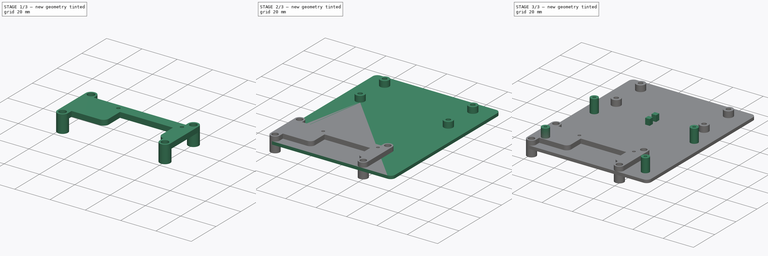
[diagram: build sequence overview — one tinted view per stage of 3, left to right]
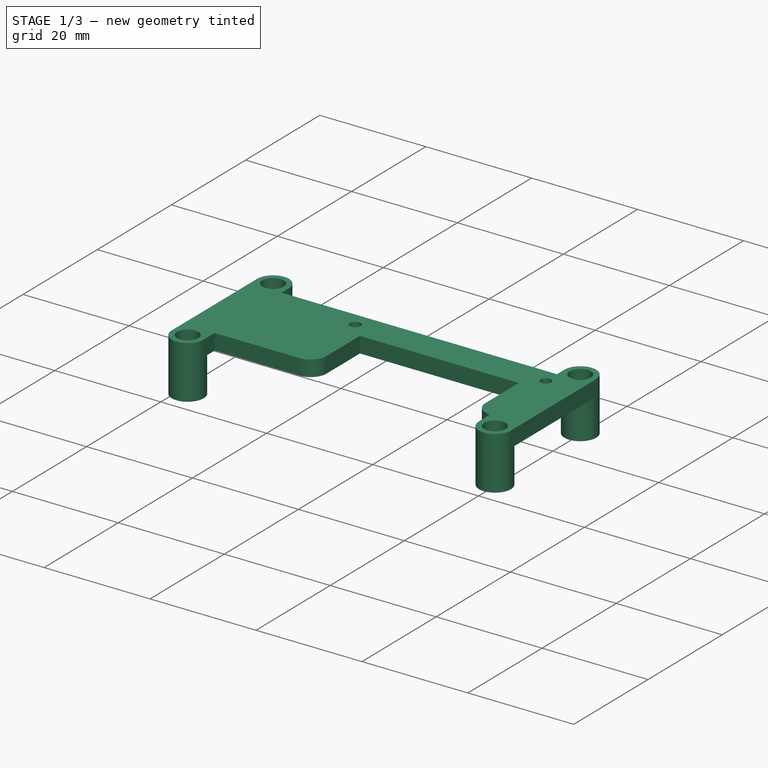
[diagram: stage 1 of 3 — iso view after this stage's code; geometry added in this stage tinted green]
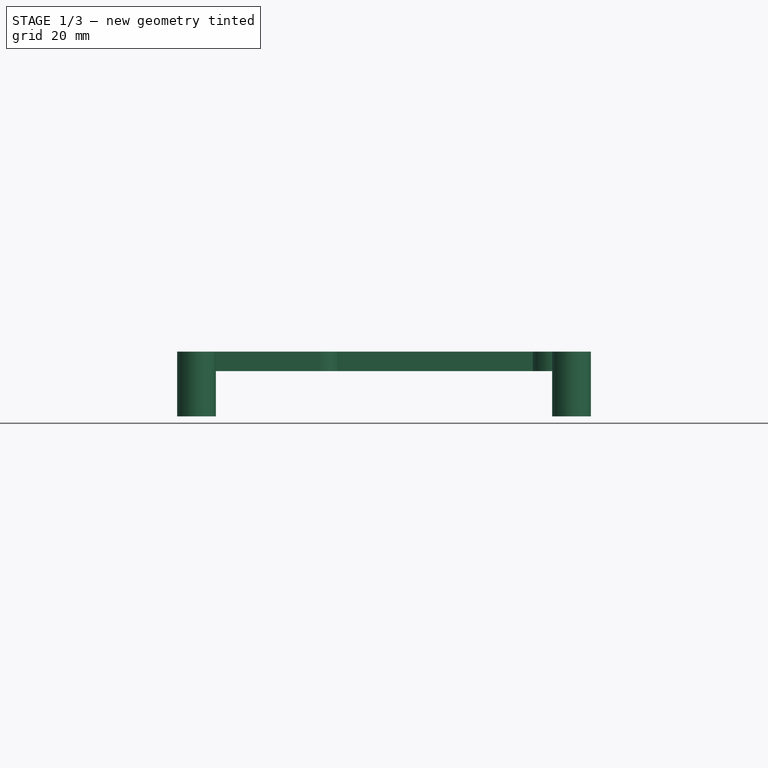
[diagram: stage 1 of 3 — front view after this stage's code; geometry added in this stage tinted green]
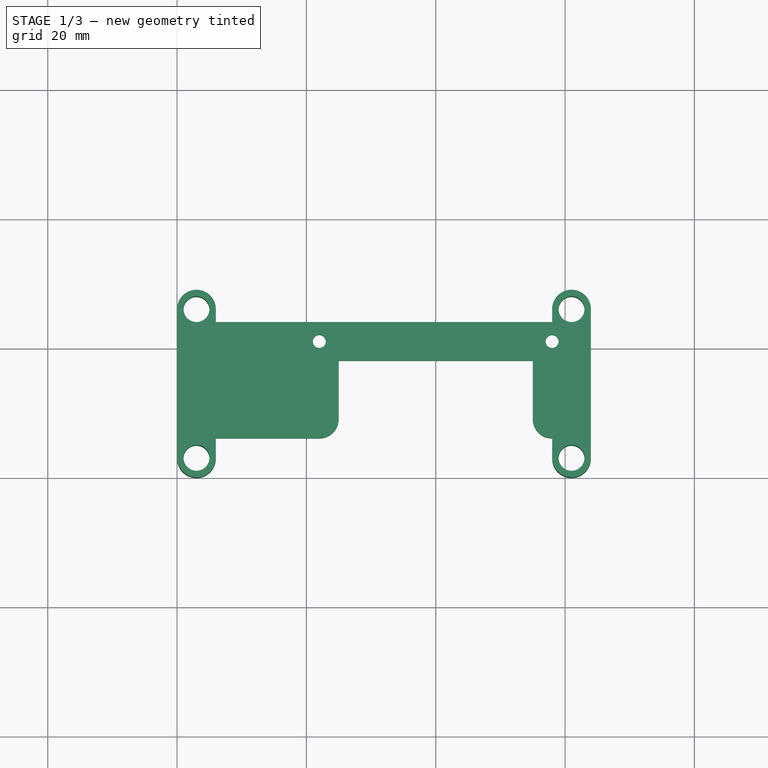
[diagram: stage 1 of 3 — top view after this stage's code; geometry added in this stage tinted green]
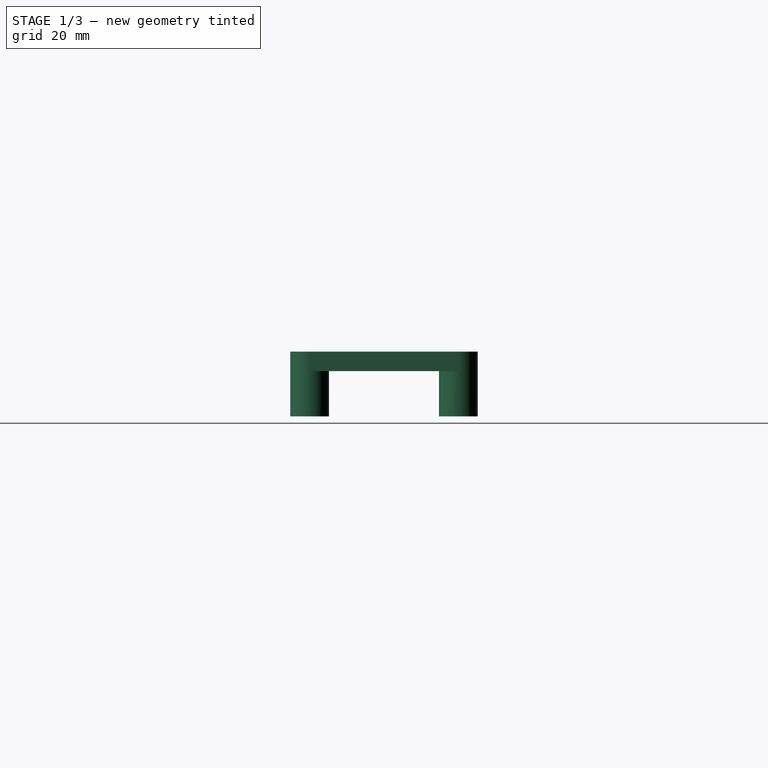
[diagram: stage 1 of 3 — right view after this stage's code; geometry added in this stage tinted green]
FCSTD DOCUMENT  (FreeCAD 1.0R39109 (Git))
Label: Octobox 2W double
License: All rights reserved
LicenseURL: http://en.wikipedia.org/wiki/All_rights_reserved
objects: Sketcher::SketchObject×6, PartDesign::Pad×6, PartDesign::Body×2
note: 32 computed .brp shape members not serialized (recipe doc carries the construction recipe); baked Part::Feature solids carry a one-line shape summary decoded from their .brp

FEATURE [PartDesign::Body] Body002  label="Base"
  AllowCompound = false
  Group = -> [Sketch002,Pad002,Sketch003,Pad003,Pad014,Sketch017,Sketch018,Pad015]
  Origin = -> Origin002
  Placement = pos=(0,0,-4) rot=(0,0,1;0rad)
  Tip = -> Pad015
FEATURE [Sketcher::SketchObject] Sketch
  ArcFitTolerance = 1e-06
  AttachmentSupport = -> [XY_Plane]
  FullyConstrained = true
  MakeInternals = false
  MapMode = 5
  sketch-geometry (27):
    g0: LineSegment StartX=0 StartY=26 StartZ=0 EndX=0 EndY=3 EndZ=0
    g1: LineSegment StartX=64 StartY=3 StartZ=0 EndX=64 EndY=26 EndZ=0
    g2: ArcOfCircle CenterX=3 CenterY=26 CenterZ=0 NormalX=0 NormalY=0 NormalZ=1 AngleXU=0 Radius=3 StartAngle=0 EndAngle=3.14159
    g3: ArcOfCircle CenterX=3 CenterY=3 CenterZ=0 NormalX=0 NormalY=0 NormalZ=1 AngleXU=0 Radius=3 StartAngle=3.14159 EndAngle=6.28319
    g4: ArcOfCircle CenterX=61 CenterY=3 CenterZ=0 NormalX=0 NormalY=0 NormalZ=1 AngleXU=0 Radius=3 StartAngle=3.14159 EndAngle=6.28319
    g5: ArcOfCircle CenterX=61 CenterY=26 CenterZ=0 NormalX=0 NormalY=0 NormalZ=1 AngleXU=0 Radius=3 StartAngle=4e-16 EndAngle=3.14159
    g6: Circle CenterX=3 CenterY=3 CenterZ=0 NormalX=0 NormalY=0 NormalZ=1 AngleXU=0 Radius=2
    g7: Circle CenterX=3 CenterY=26 CenterZ=0 NormalX=0 NormalY=0 NormalZ=1 AngleXU=0 Radius=2
    g8: Circle CenterX=61 CenterY=26 CenterZ=0 NormalX=0 NormalY=0 NormalZ=1 AngleXU=0 Radius=2
    g9: Circle CenterX=61 CenterY=3 CenterZ=0 NormalX=0 NormalY=0 NormalZ=1 AngleXU=0 Radius=2
    g10: LineSegment StartX=6 StartY=6 StartZ=0 EndX=6 EndY=3 EndZ=0
    g11: LineSegment StartX=55 StartY=9 StartZ=0 EndX=55 EndY=18 EndZ=0
    g12: LineSegment [constr] StartX=22 StartY=21 StartZ=0 EndX=58 EndY=21 EndZ=0
    g13: Circle CenterX=22 CenterY=21 CenterZ=0 NormalX=0 NormalY=0 NormalZ=1 AngleXU=0 Radius=1
    g14: Circle CenterX=58 CenterY=21 CenterZ=0 NormalX=0 NormalY=0 NormalZ=1 AngleXU=0 Radius=1
    g15: LineSegment [constr] StartX=3 StartY=3 StartZ=0 EndX=61 EndY=3 EndZ=0
    g16: LineSegment StartX=6 StartY=6 StartZ=0 EndX=22 EndY=6 EndZ=0
    g17: LineSegment StartX=25 StartY=9 StartZ=0 EndX=25 EndY=18 EndZ=0
    g18: LineSegment StartX=25 StartY=18 StartZ=0 EndX=55 EndY=18 EndZ=0
    g19: LineSegment StartX=6 StartY=26 StartZ=0 EndX=6 EndY=24 EndZ=0
    g20: LineSegment StartX=6 StartY=24 StartZ=0 EndX=58 EndY=24 EndZ=0
    g21: LineSegment StartX=58 StartY=24 StartZ=0 EndX=58 EndY=26 EndZ=0
    g22: LineSegment StartX=58 StartY=3 StartZ=0 EndX=58 EndY=6 EndZ=0
    g23: LineSegment [constr] StartX=22 StartY=21 StartZ=0 EndX=25 EndY=18 EndZ=0
    g24: LineSegment [constr] StartX=58 StartY=21 StartZ=0 EndX=55 EndY=18 EndZ=0
    g25: ArcOfCircle CenterX=22 CenterY=9 CenterZ=0 NormalX=0 NormalY=0 NormalZ=1 AngleXU=0 Radius=3 StartAngle=4.71239 EndAngle=6.28319
    g26: ArcOfCircle CenterX=58 CenterY=9 CenterZ=0 NormalX=0 NormalY=0 NormalZ=1 AngleXU=0 Radius=3 StartAngle=3.14159 EndAngle=4.71239
  constraints (68):
    c: Tangent(g0,g2) = -1.5708
    c: Tangent(g0,g3) = -1.5708
    c: Tangent(g1,g4) = -1.5708
    c: Tangent(g1,g5) = -1.5708
    c: Vertical(g0)
    c: Vertical(g1)
    c: Equal(g2,g3)
    c: Equal(g3,g4)
    c: Equal(g4,g5)
    c: DistanceX(g3,g4) = 58
    c: DistanceY(g4,g5) = 23
    c: Radius(g5) = 3
    c: DistanceX(g3) = 3
    c: DistanceY(g3) = 3
    c: Coincident(g6,g3)
    c: Coincident(g7,g2)
    c: Coincident(g8,g5)
    c: Coincident(g9,g4)
    c: Equal(g8,g9)
    c: Equal(g9,g6)
    c: Equal(g6,g7)
    c: Radius(g8) = 2
    c: Vertical(g10)
    c: Vertical(g11)
    c: Tangent(g10,g3) = 1.5708
    c: DistanceY(g-1,g10) = 6
    c: Horizontal(g12)
    c: DistanceX(g12,g12) = 36
    c: Coincident(g13,g12)
    c: Coincident(g14,g12)
    c: Equal(g14,g13)
    c: Coincident(g15,g3)
    c: Coincident(g15,g4)
    c: Horizontal(g15)
    c: Coincident(g16,g10)
    c: Horizontal(g16)
    c: Vertical(g17)
    c: Coincident(g18,g17)
    c: Coincident(g18,g11)
    c: Horizontal(g18)
    c: DistanceY(g16,g12) = 15
    c: DistanceY(g17,g12) = 3
    c: Diameter(g14) = 2
    c: DistanceY(g2,g5) = 0
    c: Coincident(g19,g20)
    c: Coincident(g20,g21)
    c: Vertical(g19)
    c: Vertical(g21)
    c: Horizontal(g20)
    c: DistanceY(g12,g20) = 3
    c: Tangent(g19,g2) = 1.5708
    c: Tangent(g21,g5) = 1.5708
    c: DistanceX(g18,g18) = 30
    c: Vertical(g22)
    c: Tangent(g22,g4) = 1.5708
    c: DistanceX(g22,g12) = 0
    c: Coincident(g23,g12)
    c: Coincident(g23,g17)
    c: Coincident(g24,g12)
    c: Coincident(g24,g11)
    c: Equal(g24,g23)
    c: Radius(g25) = 3
    c: Tangent(g25,g17) = -1.5708
    c: Tangent(g16,g25) = -1.5708
    c: Coincident(g26,g22)
    c: Tangent(g26,g11) = 1.5708
    c: Equal(g26,g25)
    c: DistanceY(g26,g25) = 0
FEATURE [PartDesign::Pad] Pad
  Direction = (0,0,1)
  Length = 3
  Length2 = 10
  Profile = -> Sketch
  ReferenceAxis = -> Sketch [N_Axis]
  Suppressed = false
  Type = 0
FEATURE [Sketcher::SketchObject] Sketch020
  ArcFitTolerance = 1e-06
  AttachmentSupport = -> [XY_Plane]
  FullyConstrained = true
  MakeInternals = false
  MapMode = 5
  sketch-geometry (12):
    g0: LineSegment [constr] StartX=3 StartY=26 StartZ=0 EndX=3 EndY=3 EndZ=0
    g1: LineSegment [constr] StartX=3 StartY=3 StartZ=0 EndX=61 EndY=3 EndZ=0
    g2: LineSegment [constr] StartX=61 StartY=3 StartZ=0 EndX=61 EndY=26 EndZ=0
    g3: LineSegment [constr] StartX=61 StartY=26 StartZ=0 EndX=3 EndY=26 EndZ=0
    g4: Circle CenterX=3 CenterY=26 CenterZ=0 NormalX=0 NormalY=0 NormalZ=1 AngleXU=0 Radius=3
    g5: Circle CenterX=3 CenterY=26 CenterZ=0 NormalX=0 NormalY=0 NormalZ=1 AngleXU=0 Radius=2
    g6: Circle CenterX=61 CenterY=26 CenterZ=0 NormalX=0 NormalY=0 NormalZ=1 AngleXU=0 Radius=3
    g7: Circle CenterX=61 CenterY=26 CenterZ=0 NormalX=0 NormalY=0 NormalZ=1 AngleXU=0 Radius=2
    g8: Circle CenterX=3 CenterY=3 CenterZ=0 NormalX=0 NormalY=0 NormalZ=1 AngleXU=0 Radius=3
    g9: Circle CenterX=3 CenterY=3 CenterZ=0 NormalX=0 NormalY=0 NormalZ=1 AngleXU=0 Radius=2
    g10: Circle CenterX=61 CenterY=3 CenterZ=0 NormalX=0 NormalY=0 NormalZ=1 AngleXU=0 Radius=3
    g11: Circle CenterX=61 CenterY=3 CenterZ=0 NormalX=0 NormalY=0 NormalZ=1 AngleXU=0 Radius=2
  constraints (28):
    c: Coincident(g0,g1)
    c: Coincident(g1,g2)
    c: Coincident(g2,g3)
    c: Coincident(g3,g0)
    c: Vertical(g0)
    c: Vertical(g2)
    c: Horizontal(g1)
    c: Horizontal(g3)
    c: DistanceX(g3,g3) = 58
    c: DistanceY(g0,g0) = 23
    c: DistanceX(g0) = 3
    c: DistanceY(g0) = 3
    c: Coincident(g4,g0)
    c: Coincident(g5,g0)
    c: Coincident(g6,g2)
    c: Coincident(g7,g2)
    c: Coincident(g8,g0)
    c: Coincident(g9,g0)
    c: Coincident(g10,g1)
    c: Coincident(g11,g1)
    c: Equal(g11,g7)
    c: Equal(g7,g5)
    c: Equal(g5,g9)
    c: Radius(g7) = 2
    c: Equal(g6,g4)
    c: Equal(g4,g8)
    c: Equal(g8,g10)
    c: Radius(g6) = 3
FEATURE [PartDesign::Pad] Pad017
  BaseFeature = -> Pad
  Direction = (0,0,1)
  Length = 7
  Length2 = 10
  Profile = -> Sketch020
  ReferenceAxis = -> Sketch020 [N_Axis]
  Reversed = true
  Suppressed = false
  Type = 0
FEATURE [PartDesign::Body] Body  label="Fan"
  AllowCompound = false
  Group = -> [Sketch,Pad,Sketch020,Pad017]
  Origin = -> Origin
  Placement = pos=(9,67,10) rot=(0,0,1;0rad)
  Tip = -> Pad017
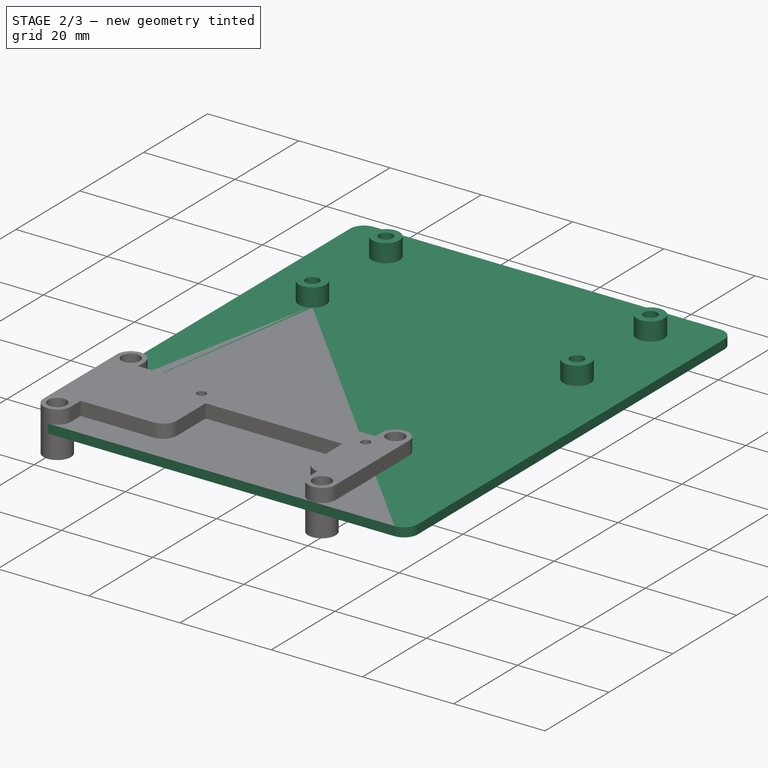
[diagram: stage 2 of 3 — iso view after this stage's code; geometry added in this stage tinted green]
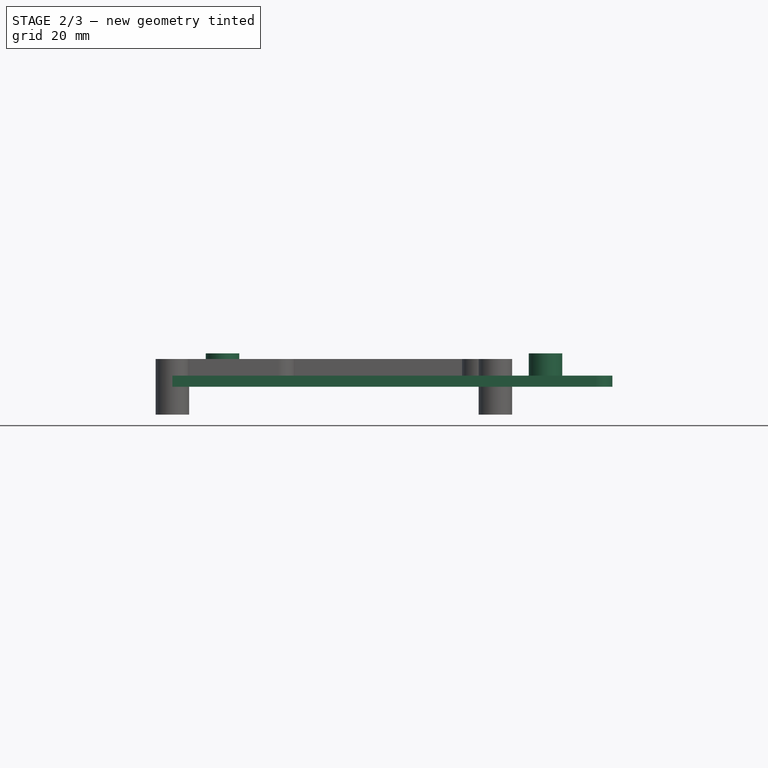
[diagram: stage 2 of 3 — front view after this stage's code; geometry added in this stage tinted green]
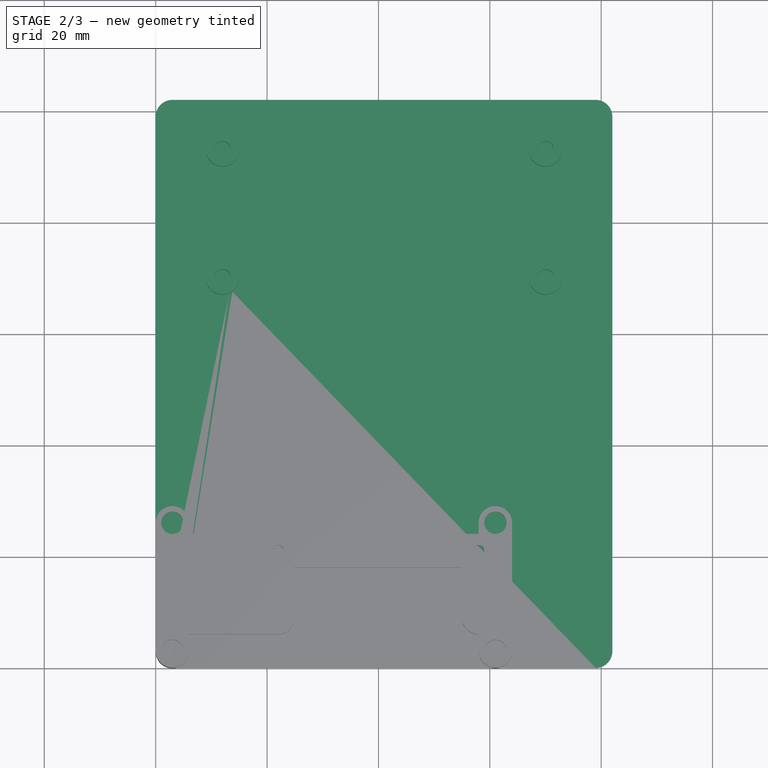
[diagram: stage 2 of 3 — top view after this stage's code; geometry added in this stage tinted green]
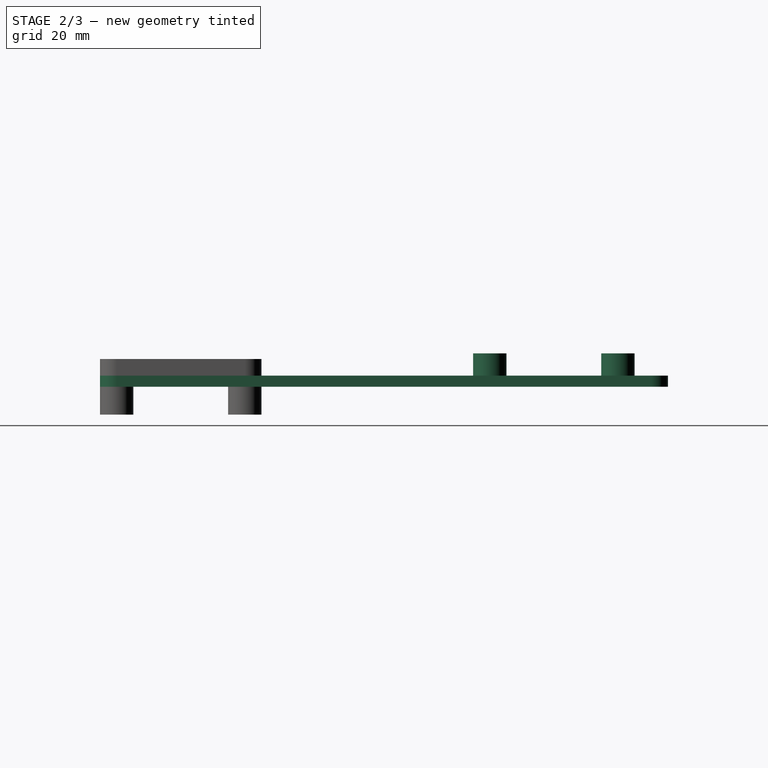
[diagram: stage 2 of 3 — right view after this stage's code; geometry added in this stage tinted green]
FEATURE [Sketcher::SketchObject] Sketch002
  ArcFitTolerance = 0
  AttachmentSupport = -> [XY_Plane002]
  FullyConstrained = true
  MakeInternals = false
  MapMode = 5
  sketch-geometry (10):
    g0: LineSegment StartX=0 StartY=99 StartZ=0 EndX=0 EndY=3 EndZ=0
    g1: LineSegment StartX=3 StartY=0 StartZ=0 EndX=79 EndY=0 EndZ=0
    g2: LineSegment StartX=82 StartY=3 StartZ=0 EndX=82 EndY=99 EndZ=0
    g3: LineSegment StartX=79 StartY=102 StartZ=0 EndX=3 EndY=102 EndZ=0
    g4: ArcOfCircle CenterX=3 CenterY=99 CenterZ=0 NormalX=0 NormalY=0 NormalZ=1 AngleXU=0 Radius=3 StartAngle=1.5708 EndAngle=3.14159
    g5: ArcOfCircle CenterX=3 CenterY=3 CenterZ=0 NormalX=0 NormalY=0 NormalZ=1 AngleXU=0 Radius=3 StartAngle=3.14159 EndAngle=4.71239
    g6: ArcOfCircle CenterX=79 CenterY=3 CenterZ=0 NormalX=0 NormalY=0 NormalZ=1 AngleXU=0 Radius=3 StartAngle=4.71239 EndAngle=6.28319
    g7: ArcOfCircle CenterX=79 CenterY=99 CenterZ=0 NormalX=0 NormalY=0 NormalZ=1 AngleXU=0 Radius=3 StartAngle=-9e-16 EndAngle=1.5708
    g8: GeomPoint [constr] X=0 Y=102 Z=0
    g9: GeomPoint [constr] X=82 Y=0 Z=0
  constraints (24):
    c: Tangent(g0,g4) = -1.5708
    c: Tangent(g0,g5) = -1.5708
    c: Tangent(g1,g5) = -1.5708
    c: Tangent(g1,g6) = -1.5708
    c: Tangent(g2,g6) = -1.5708
    c: Tangent(g2,g7) = -1.5708
    c: Tangent(g3,g7) = -1.5708
    c: Tangent(g3,g4) = -1.5708
    c: Vertical(g0)
    c: Vertical(g2)
    c: Horizontal(g1)
    c: Horizontal(g3)
    c: Equal(g4,g5)
    c: Equal(g5,g6)
    c: Equal(g6,g7)
    c: PointOnObject(g8,g0)
    c: PointOnObject(g8,g3)
    c: PointOnObject(g9,g1)
    c: PointOnObject(g9,g2)
    c: Radius(g7) = 3
    c: DistanceX(g8,g9) = 82
    c: DistanceY(g9,g8) = 102
    c: DistanceY(g-1,g1) = 0
    c: DistanceX(g-1,g0) = 0
FEATURE [PartDesign::Pad] Pad002
  Direction = (0,0,1)
  Length = 2
  Length2 = 10
  Profile = -> Sketch002
  ReferenceAxis = -> Sketch002 [N_Axis]
  Reversed = true
  Suppressed = false
  Type = 0
FEATURE [Sketcher::SketchObject] Sketch003
  ArcFitTolerance = 0
  AttachmentSupport = -> [XY_Plane002]
  FullyConstrained = true
  MakeInternals = false
  MapMode = 5
  sketch-geometry (21):
    g0: LineSegment [constr] StartX=12 StartY=93 StartZ=0 EndX=70 EndY=93 EndZ=0
    g1: LineSegment [constr] StartX=70 StartY=93 StartZ=0 EndX=70 EndY=70 EndZ=0
    g2: LineSegment [constr] StartX=70 StartY=70 StartZ=0 EndX=12 EndY=70 EndZ=0
    g3: LineSegment [constr] StartX=12 StartY=70 StartZ=0 EndX=12 EndY=93 EndZ=0
    g4: Circle CenterX=12 CenterY=93 CenterZ=0 NormalX=0 NormalY=0 NormalZ=1 AngleXU=0 Radius=3
    g5: Circle CenterX=70 CenterY=93 CenterZ=0 NormalX=0 NormalY=0 NormalZ=1 AngleXU=0 Radius=3
    g6: Circle CenterX=70 CenterY=70 CenterZ=0 NormalX=0 NormalY=0 NormalZ=1 AngleXU=0 Radius=3
    g7: Circle CenterX=12 CenterY=70 CenterZ=0 NormalX=0 NormalY=0 NormalZ=1 AngleXU=0 Radius=3
    g8: LineSegment [constr] StartX=82 StartY=102 StartZ=0 EndX=0 EndY=102 EndZ=0
    g9: LineSegment [constr] StartX=0 StartY=102 StartZ=0 EndX=0 EndY=0 EndZ=0
    g10: LineSegment [constr] StartX=0 StartY=0 StartZ=0 EndX=82 EndY=0 EndZ=0
    g11: LineSegment [constr] StartX=82 StartY=0 StartZ=0 EndX=82 EndY=102 EndZ=0
    g12: LineSegment [constr] StartX=12 StartY=93 StartZ=0 EndX=0 EndY=102 EndZ=0
    g13: LineSegment [constr] StartX=70 StartY=93 StartZ=0 EndX=82 EndY=102 EndZ=0
    g14: LineSegment [constr] StartX=41 StartY=55 StartZ=0 EndX=41 EndY=9 EndZ=0
    g15: Circle [constr] CenterX=41 CenterY=9 CenterZ=0 NormalX=0 NormalY=0 NormalZ=1 AngleXU=0 Radius=9
    g16: Circle [constr] CenterX=70 CenterY=93 CenterZ=0 NormalX=0 NormalY=0 NormalZ=1 AngleXU=0 Radius=9
    g17: Circle CenterX=12 CenterY=93 CenterZ=0 NormalX=0 NormalY=0 NormalZ=1 AngleXU=0 Radius=1.5
    g18: Circle CenterX=70 CenterY=93 CenterZ=0 NormalX=0 NormalY=0 NormalZ=1 AngleXU=0 Radius=1.5
    g19: Circle CenterX=12 CenterY=70 CenterZ=0 NormalX=0 NormalY=0 NormalZ=1 AngleXU=0 Radius=1.5
    g20: Circle CenterX=70 CenterY=70 CenterZ=0 NormalX=0 NormalY=0 NormalZ=1 AngleXU=0 Radius=1.5
  constraints (52):
    c: Coincident(g0,g1)
    c: Coincident(g1,g2)
    c: Coincident(g2,g3)
    c: Coincident(g3,g0)
    c: Horizontal(g0)
    c: Horizontal(g2)
    c: Vertical(g1)
    c: Vertical(g3)
    c: DistanceX(g0,g0) = 58
    c: DistanceY(g3,g3) = 23
    c: Coincident(g4,g0)
    c: Coincident(g5,g0)
    c: Coincident(g6,g1)
    c: Coincident(g7,g2)
    c: Equal(g4,g5)
    c: Equal(g5,g6)
    c: Equal(g6,g7)
    c: Radius(g5) = 3
    c: Coincident(g8,g9)
    c: Coincident(g9,g10)
    c: Coincident(g10,g11)
    c: Coincident(g11,g8)
    c: Horizontal(g8)
    c: Horizontal(g10)
    c: Vertical(g9)
    c: Vertical(g11)
    c: DistanceX(g10,g10) = 82
    c: DistanceY(g11,g11) = 102
    c: DistanceX(g9) = 0
    c: DistanceY(g9) = 0
    c: Coincident(g12,g0)
    c: Coincident(g12,g8)
    c: Coincident(g13,g0)
    c: Coincident(g13,g8)
    c: Equal(g13,g12)
    c: Vertical(g14)
    c: DistanceY(g14,g14) = 46
    c: Coincident(g15,g14)
    c: Tangent(g15,g10)
    c: Coincident(g16,g0)
    c: Tangent(g16,g8)
    c: Equal(g16,g15)
    c: DistanceY(g14,g1) = 15
    c: DistanceX(g9,g14) = 41
    c: Coincident(g17,g0)
    c: Coincident(g18,g0)
    c: Coincident(g19,g2)
    c: Coincident(g20,g1)
    c: Equal(g18,g20)
    c: Equal(g20,g19)
    c: Equal(g19,g17)
    c: Radius(g17) = 1.5
FEATURE [PartDesign::Pad] Pad003
  BaseFeature = -> Pad002
  Direction = (0,0,1)
  Length = 4
  Length2 = 10
  Profile = -> Sketch003
  ReferenceAxis = -> Sketch003 [N_Axis]
  Suppressed = false
  Type = 0
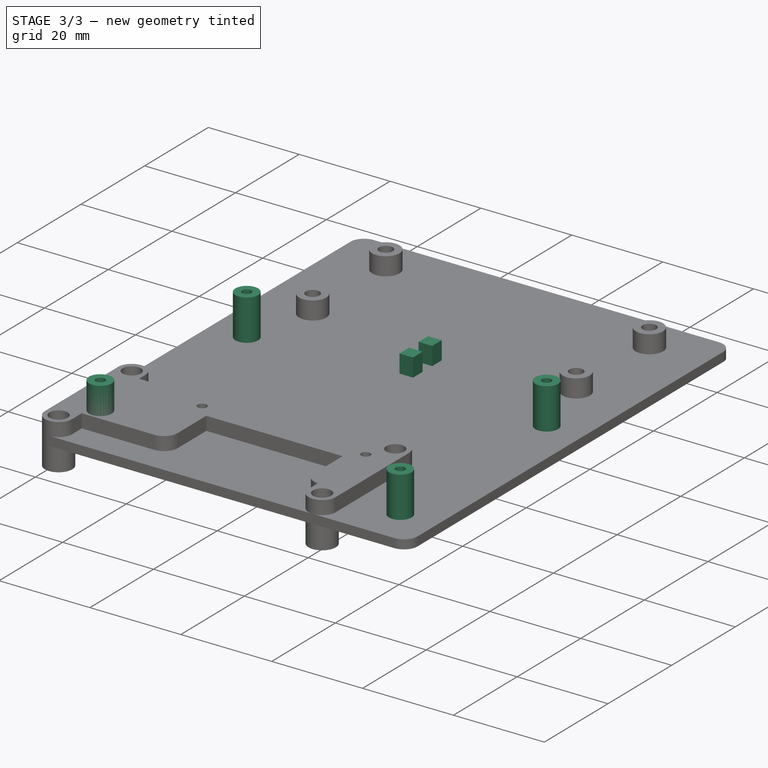
[diagram: stage 3 of 3 — iso view after this stage's code; geometry added in this stage tinted green]
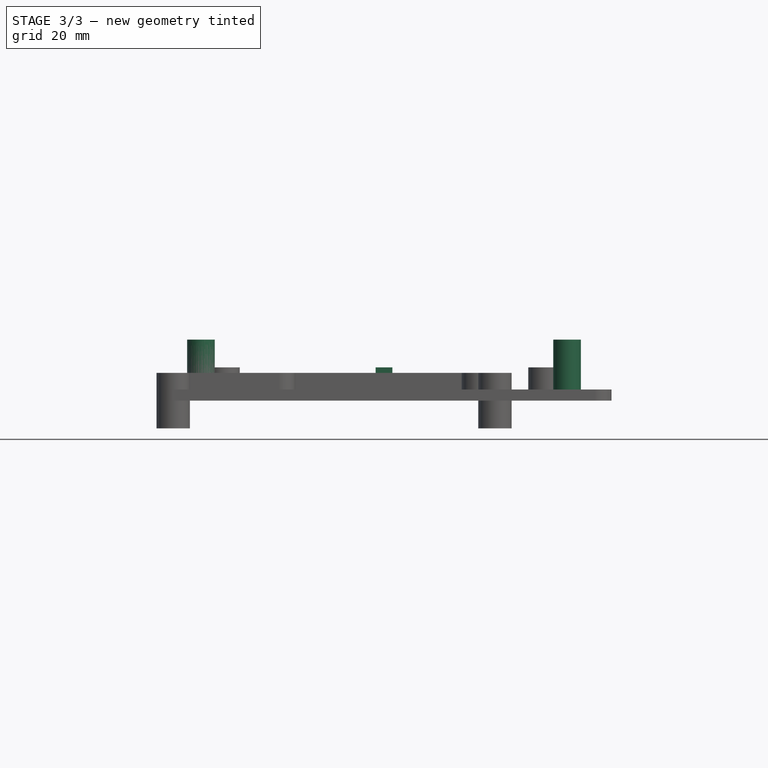
[diagram: stage 3 of 3 — front view after this stage's code; geometry added in this stage tinted green]
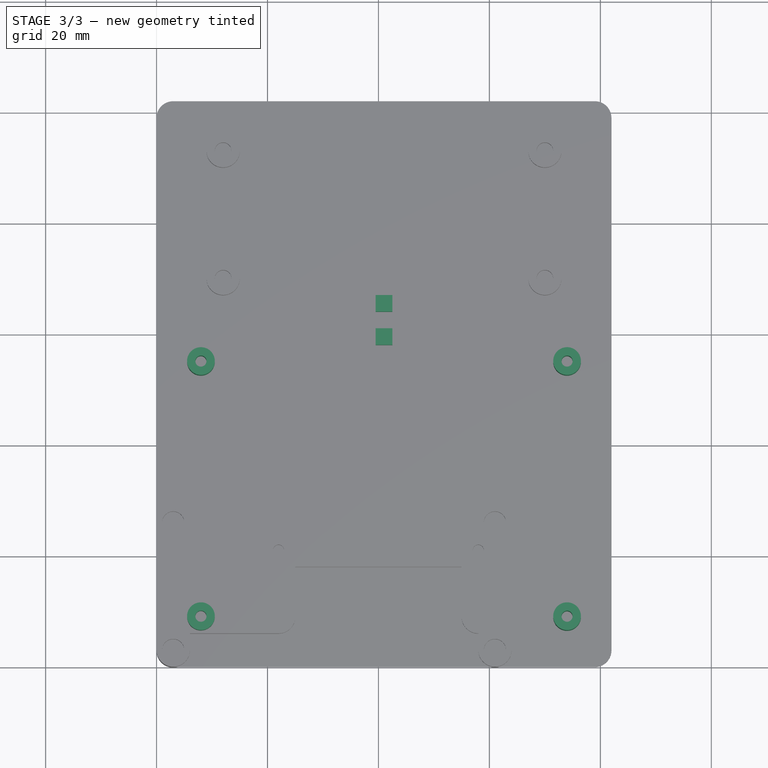
[diagram: stage 3 of 3 — top view after this stage's code; geometry added in this stage tinted green]
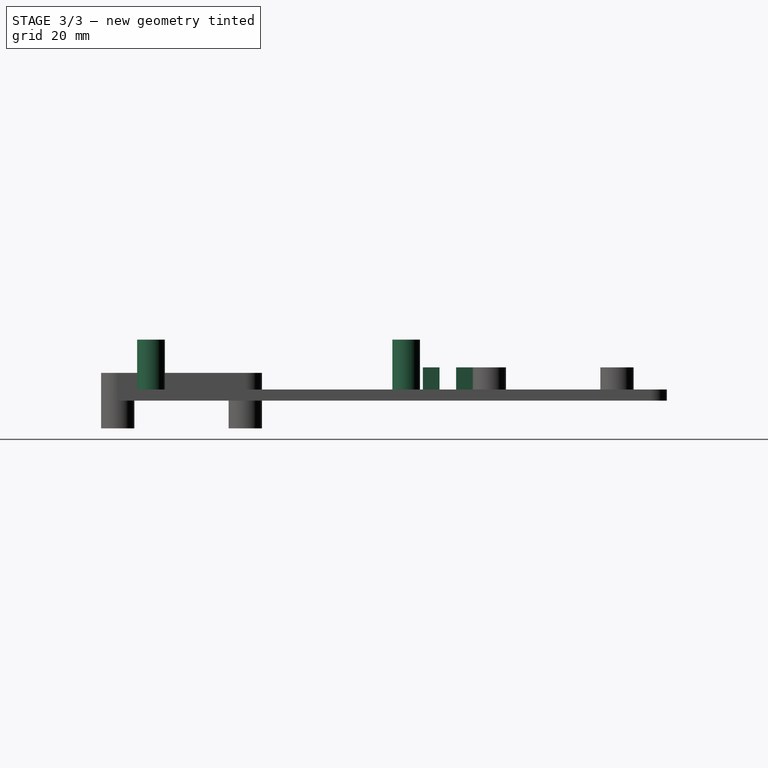
[diagram: stage 3 of 3 — right view after this stage's code; geometry added in this stage tinted green]
FEATURE [Sketcher::SketchObject] Sketch017
  ArcFitTolerance = 0
  AttachmentSupport = -> [XY_Plane002]
  FullyConstrained = true
  MakeInternals = false
  MapMode = 5
  sketch-geometry (21):
    g0: LineSegment [constr] StartX=8 StartY=55 StartZ=0 EndX=74 EndY=55 EndZ=0
    g1: LineSegment [constr] StartX=74 StartY=55 StartZ=0 EndX=74 EndY=9 EndZ=0
    g2: LineSegment [constr] StartX=74 StartY=9 StartZ=0 EndX=8 EndY=9 EndZ=0
    g3: LineSegment [constr] StartX=8 StartY=9 StartZ=0 EndX=8 EndY=55 EndZ=0
    g4: Circle CenterX=8 CenterY=9 CenterZ=0 NormalX=0 NormalY=0 NormalZ=1 AngleXU=0 Radius=2.5
    g5: Circle CenterX=74 CenterY=9 CenterZ=0 NormalX=0 NormalY=0 NormalZ=1 AngleXU=0 Radius=2.5
    g6: Circle CenterX=74 CenterY=55 CenterZ=0 NormalX=0 NormalY=0 NormalZ=1 AngleXU=0 Radius=2.5
    g7: Circle CenterX=8 CenterY=55 CenterZ=0 NormalX=0 NormalY=0 NormalZ=1 AngleXU=0 Radius=2.5
    g8: LineSegment [constr] StartX=0 StartY=102 StartZ=0 EndX=0 EndY=0 EndZ=0
    g9: LineSegment [constr] StartX=0 StartY=0 StartZ=0 EndX=82 EndY=0 EndZ=0
    g10: LineSegment [constr] StartX=82 StartY=0 StartZ=0 EndX=82 EndY=102 EndZ=0
    g11: LineSegment [constr] StartX=82 StartY=102 StartZ=0 EndX=0 EndY=102 EndZ=0
    g12: LineSegment [constr] StartX=8 StartY=9 StartZ=0 EndX=0 EndY=0 EndZ=0
    g13: LineSegment [constr] StartX=74 StartY=9 StartZ=0 EndX=82 EndY=0 EndZ=0
    g14: LineSegment [constr] StartX=41 StartY=93 StartZ=0 EndX=41 EndY=70 EndZ=0
    g15: Circle [constr] CenterX=41 CenterY=93 CenterZ=0 NormalX=0 NormalY=0 NormalZ=1 AngleXU=0 Radius=9
    g16: Circle [constr] CenterX=74 CenterY=9 CenterZ=0 NormalX=0 NormalY=0 NormalZ=1 AngleXU=0 Radius=9
    g17: Circle CenterX=8 CenterY=55 CenterZ=0 NormalX=0 NormalY=0 NormalZ=1 AngleXU=0 Radius=1
    g18: Circle CenterX=74 CenterY=55 CenterZ=0 NormalX=0 NormalY=0 NormalZ=1 AngleXU=0 Radius=1
    g19: Circle CenterX=74 CenterY=9 CenterZ=0 NormalX=0 NormalY=0 NormalZ=1 AngleXU=0 Radius=1
    g20: Circle CenterX=8 CenterY=9 CenterZ=0 NormalX=0 NormalY=0 NormalZ=1 AngleXU=0 Radius=1
  constraints (52):
    c: Coincident(g0,g1)
    c: Coincident(g1,g2)
    c: Coincident(g2,g3)
    c: Coincident(g3,g0)
    c: Horizontal(g0)
    c: Horizontal(g2)
    c: Vertical(g1)
    c: Vertical(g3)
    c: DistanceX(g0,g0) = 66
    c: DistanceY(g3,g3) = 46
    c: Coincident(g4,g2)
    c: Coincident(g5,g1)
    c: Coincident(g6,g0)
    c: Equal(g7,g6)
    c: Equal(g6,g5)
    c: Equal(g5,g4)
    c: Radius(g6) = 2.5
    c: Coincident(g7,g0)
    c: Coincident(g8,g9)
    c: Coincident(g9,g10)
    c: Coincident(g10,g11)
    c: Coincident(g11,g8)
    c: Vertical(g8)
    c: Vertical(g10)
    c: Horizontal(g9)
    c: Horizontal(g11)
    c: DistanceX(g8) = 0
    c: DistanceY(g8) = 0
    c: DistanceX(g11,g11) = 82
    c: DistanceY(g10,g10) = 102
    c: Coincident(g12,g2)
    c: Coincident(g12,g8)
    c: Coincident(g13,g1)
    c: Coincident(g13,g9)
    c: Equal(g13,g12)
    c: Vertical(g14)
    c: DistanceY(g14,g14) = 23
    c: DistanceX(g8,g14) = 41
    c: Coincident(g15,g14)
    c: Tangent(g15,g11)
    c: Coincident(g16,g1)
    c: Tangent(g16,g9)
    c: DistanceY(g0,g14) = 15
    c: Equal(g15,g16)
    c: Coincident(g17,g0)
    c: Coincident(g18,g0)
    c: Coincident(g19,g1)
    c: Coincident(g20,g2)
    c: Equal(g17,g20)
    c: Equal(g20,g19)
    c: Equal(g19,g18)
    c: Radius(g17) = 1
FEATURE [PartDesign::Pad] Pad014
  BaseFeature = -> Pad003
  Direction = (0,0,1)
  Length = 9
  Length2 = 10
  Profile = -> Sketch017
  ReferenceAxis = -> Sketch017 [N_Axis]
  Suppressed = false
  Type = 0
FEATURE [Sketcher::SketchObject] Sketch018
  ArcFitTolerance = 0
  AttachmentSupport = -> [XY_Plane002]
  FullyConstrained = true
  MakeInternals = false
  MapMode = 5
  sketch-geometry (20):
    g0: LineSegment StartX=39.5 StartY=67 StartZ=0 EndX=42.5 EndY=67 EndZ=0
    g1: LineSegment StartX=42.5 StartY=67 StartZ=0 EndX=42.5 EndY=64 EndZ=0
    g2: LineSegment StartX=42.5 StartY=64 StartZ=0 EndX=39.5 EndY=64 EndZ=0
    g3: LineSegment StartX=39.5 StartY=64 StartZ=0 EndX=39.5 EndY=67 EndZ=0
    g4: LineSegment StartX=39.5 StartY=61 StartZ=0 EndX=42.5 EndY=61 EndZ=0
    g5: LineSegment StartX=42.5 StartY=61 StartZ=0 EndX=42.5 EndY=58 EndZ=0
    g6: LineSegment StartX=42.5 StartY=58 StartZ=0 EndX=39.5 EndY=58 EndZ=0
    g7: LineSegment StartX=39.5 StartY=58 StartZ=0 EndX=39.5 EndY=61 EndZ=0
    g8: LineSegment [constr] StartX=2.84e-14 StartY=102 StartZ=0 EndX=2.84e-14 EndY=-2.0037e-12 EndZ=0
    g9: LineSegment [constr] StartX=2.84e-14 StartY=-2.0037e-12 StartZ=0 EndX=82 EndY=-2.0037e-12 EndZ=0
    g10: LineSegment [constr] StartX=82 StartY=-2.0037e-12 StartZ=0 EndX=82 EndY=102 EndZ=0
    g11: LineSegment [constr] StartX=82 StartY=102 StartZ=0 EndX=2.84e-14 EndY=102 EndZ=0
    g12: LineSegment [constr] StartX=39.5 StartY=67 StartZ=0 EndX=2.84e-14 EndY=102 EndZ=0
    g13: LineSegment [constr] StartX=42.5 StartY=67 StartZ=0 EndX=82 EndY=102 EndZ=0
    g14: LineSegment [constr] StartX=41 StartY=55 StartZ=0 EndX=41 EndY=9 EndZ=0
    g15: LineSegment [constr] StartX=41 StartY=70 StartZ=0 EndX=41 EndY=93 EndZ=0
    g16: Circle [constr] CenterX=41 CenterY=9 CenterZ=0 NormalX=0 NormalY=0 NormalZ=1 AngleXU=0 Radius=9
    g17: Circle [constr] CenterX=41 CenterY=93 CenterZ=0 NormalX=0 NormalY=0 NormalZ=1 AngleXU=0 Radius=9
    g18: LineSegment [constr] StartX=42.5 StartY=67 StartZ=0 EndX=41 EndY=70 EndZ=0
    g19: LineSegment [constr] StartX=42.5 StartY=58 StartZ=0 EndX=41 EndY=55 EndZ=0
  constraints (56):
    c: Coincident(g0,g1)
    c: Coincident(g1,g2)
    c: Coincident(g2,g3)
    c: Coincident(g3,g0)
    c: Horizontal(g0)
    c: Horizontal(g2)
    c: Vertical(g1)
    c: Vertical(g3)
    c: DistanceY(g3,g3) = 3
    c: Coincident(g4,g5)
    c: Coincident(g5,g6)
    c: Coincident(g6,g7)
    c: Coincident(g7,g4)
    c: Horizontal(g4)
    c: Horizontal(g6)
    c: Vertical(g5)
    c: Vertical(g7)
    c: DistanceX(g4,g1) = 0
    c: DistanceX(g4,g2) = 0
    c: DistanceY(g7,g7) = 3
    c: DistanceY(g4,g2) = 3
    c: DistanceX(g0,g0) = 3
    c: Coincident(g8,g9)
    c: Coincident(g9,g10)
    c: Coincident(g10,g11)
    c: Coincident(g11,g8)
    c: Vertical(g8)
    c: Vertical(g10)
    c: Horizontal(g9)
    c: Horizontal(g11)
    c: DistanceX(g8,g-1) = 0
    c: DistanceX(g9,g9) = 82
    c: DistanceY(g10,g10) = 102
    c: DistanceY(g8,g-1) = 0
    c: Coincident(g12,g0)
    c: Coincident(g12,g8)
    c: Coincident(g13,g0)
    c: Coincident(g13,g10)
    c: Equal(g13,g12)
    c: Vertical(g14)
    c: Vertical(g15)
    c: DistanceY(g15,g15) = 23
    c: DistanceY(g14,g14) = 46
    c: Coincident(g16,g14)
    c: Tangent(g16,g9)
    c: Coincident(g17,g15)
    c: Tangent(g17,g11)
    c: DistanceX(g8,g15) = 41
    c: DistanceX(g8,g14) = 41
    c: Equal(g16,g17)
    c: DistanceY(g14,g15) = 15
    c: Coincident(g18,g0)
    c: Coincident(g18,g15)
    c: Coincident(g19,g5)
    c: Coincident(g19,g14)
    c: Equal(g19,g18)
FEATURE [PartDesign::Pad] Pad015
  BaseFeature = -> Pad014
  Direction = (0,0,1)
  Length = 4
  Length2 = 10
  Profile = -> Sketch018
  ReferenceAxis = -> Sketch018 [N_Axis]
  Suppressed = false
  Type = 0
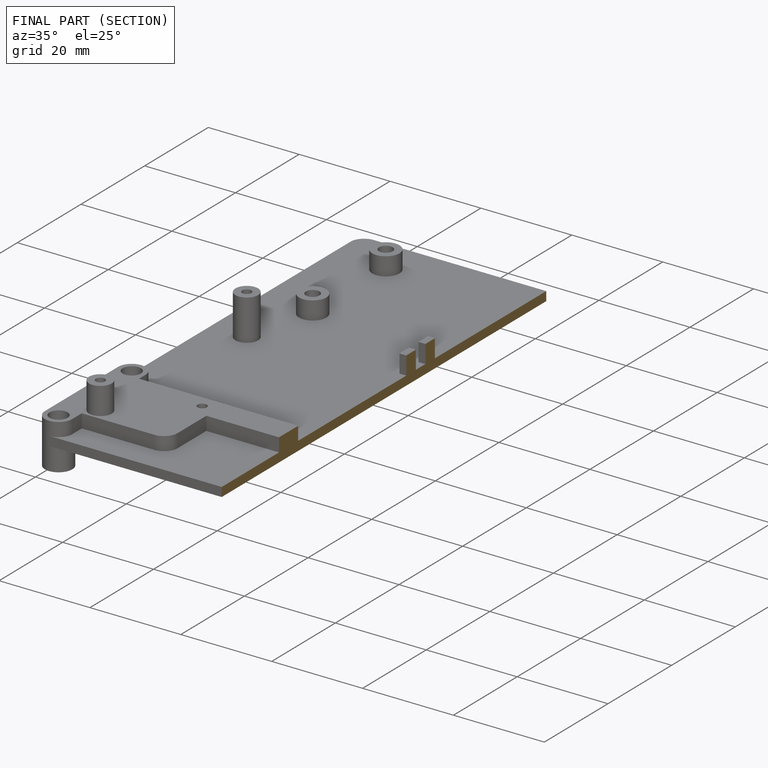
[diagram: finished part — half-section view (interior)]
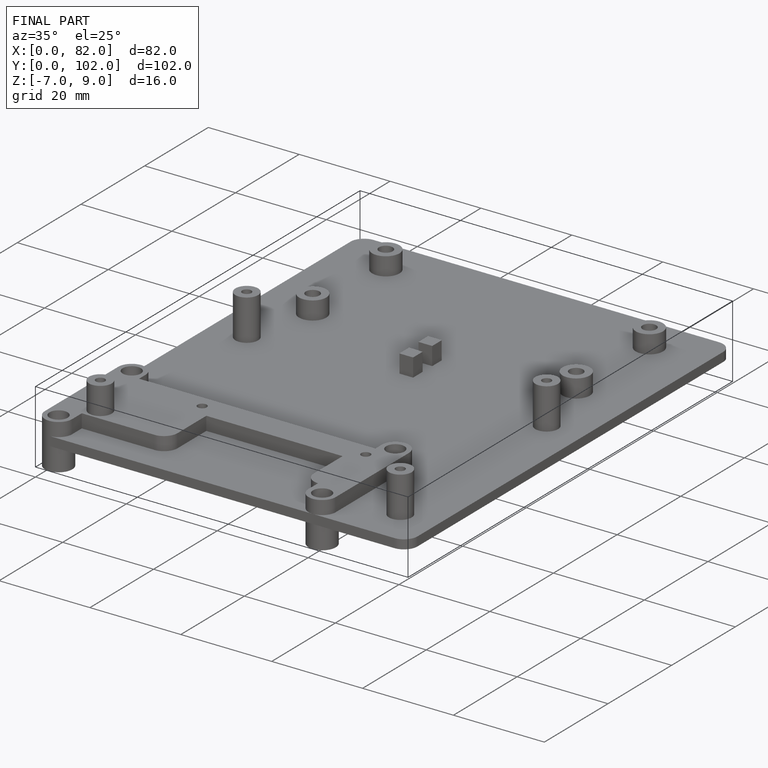
[diagram: finished part — iso view with bounding-box wireframe]
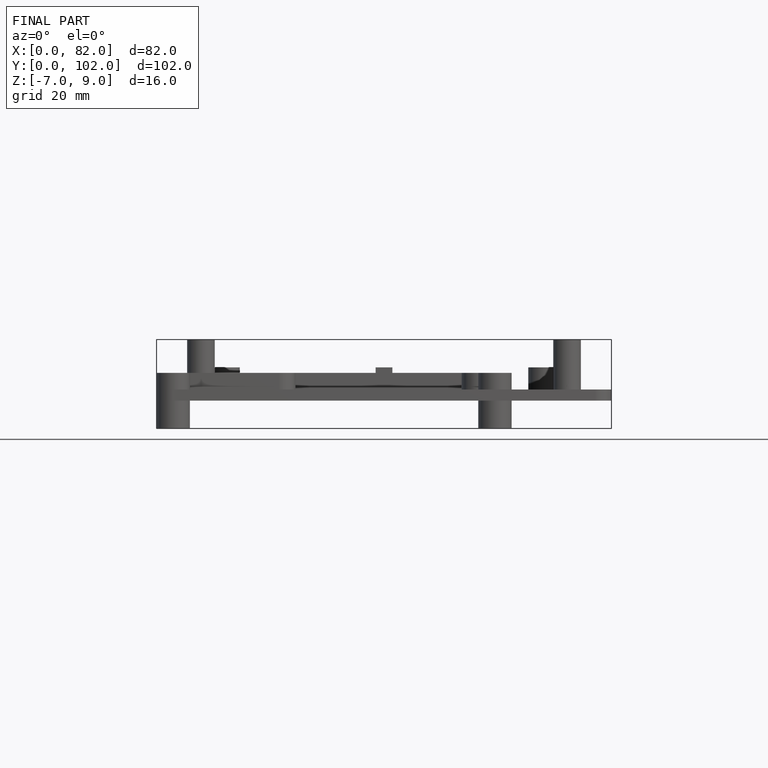
[diagram: finished part — front view with bounding-box wireframe]
